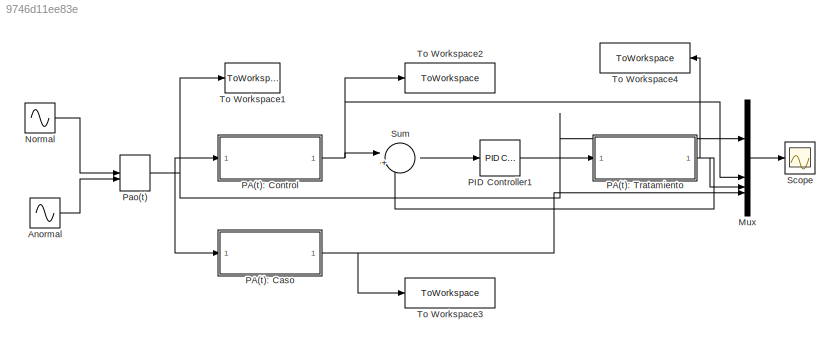
MODEL slx_9746d11ee83e
KIND model
CONFIG AbsTol = auto
CONFIG EnableMultiTasking = off
CONFIG FixedStep = auto
CONFIG MaxStep = 1e-3
CONFIG MinStep = auto
CONFIG RelTol = 1e-3
CONFIG SampleTimeConstraint = Unconstrained
CONFIG SolverName = ode15s
CONFIG StartTime = 0
CONFIG StopTime = 30
BLOCK [Sin] Anormal
  Amplitude = 1.5
  Frequency = pi/2
  SampleTime = 0
BLOCK [Mux] Mux
  DisplayOption = bar
BLOCK [Sin] Normal
  Amplitude = 2.5
  Frequency = pi
  SampleTime = 0
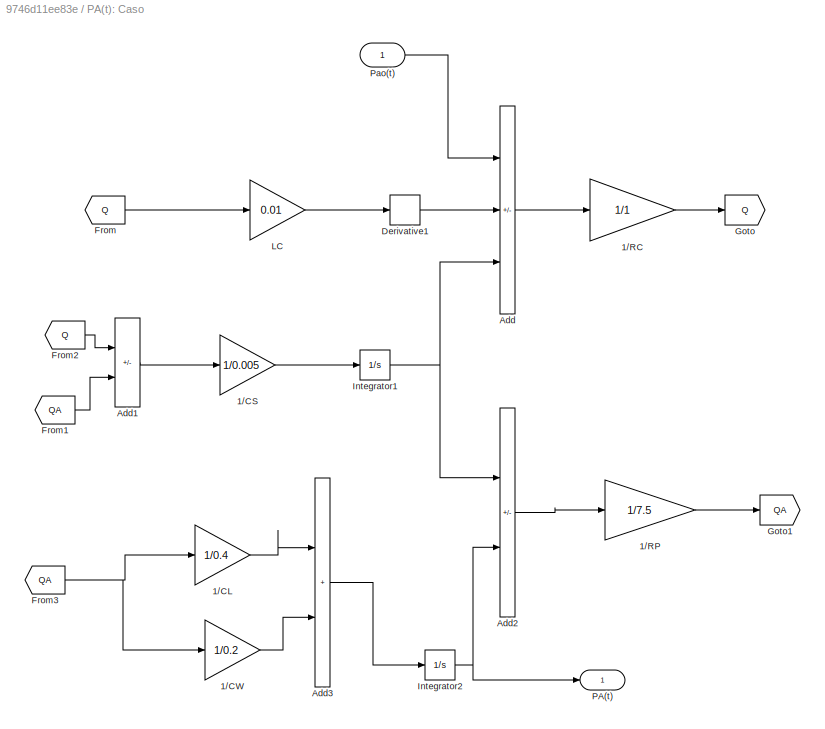
BLOCK [SubSystem] PA(t): Caso
BLOCK [Gain] PA(t): Caso/1//CL
  Gain = 1/0.4
BLOCK [Gain] PA(t): Caso/1//CS
  Gain = 1/0.005
BLOCK [Gain] PA(t): Caso/1//CW
  Gain = 1/0.2
BLOCK [Gain] PA(t): Caso/1//RC
  Gain = 1/1
BLOCK [Gain] PA(t): Caso/1//RP
  Gain = 1/7.5
BLOCK [Sum] PA(t): Caso/Add
  IconShape = rectangular
  Inputs = +--
BLOCK [Sum] PA(t): Caso/Add1
  IconShape = rectangular
  Inputs = +-
BLOCK [Sum] PA(t): Caso/Add2
  IconShape = rectangular
  Inputs = +-
BLOCK [Sum] PA(t): Caso/Add3
  IconShape = rectangular
BLOCK [Derivative] PA(t): Caso/Derivative1
BLOCK [From] PA(t): Caso/From
  GotoTag = Q
BLOCK [From] PA(t): Caso/From1
  GotoTag = QA
BLOCK [From] PA(t): Caso/From2
  GotoTag = Q
BLOCK [From] PA(t): Caso/From3
  GotoTag = QA
BLOCK [Goto] PA(t): Caso/Goto
  GotoTag = Q
BLOCK [Goto] PA(t): Caso/Goto1
  GotoTag = QA
BLOCK [Integrator] PA(t): Caso/Integrator1
BLOCK [Integrator] PA(t): Caso/Integrator2
BLOCK [Gain] PA(t): Caso/LC
  Gain = 0.01
BLOCK [Outport] PA(t): Caso/PA(t)
BLOCK [Inport] PA(t): Caso/Pao(t)
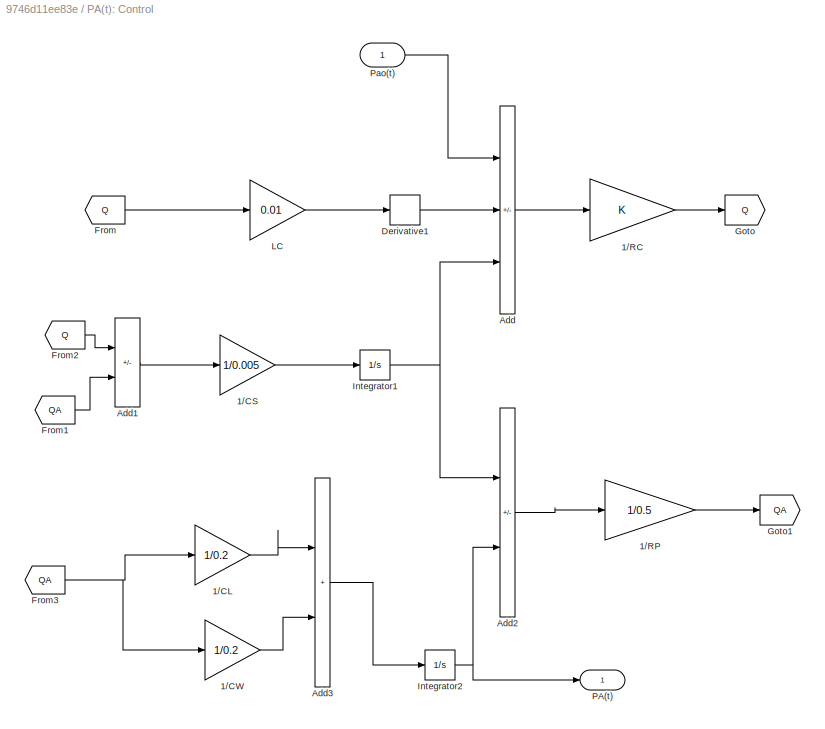
BLOCK [SubSystem] PA(t): Control
BLOCK [Gain] PA(t): Control/1//CL
  Gain = 1/0.2
BLOCK [Gain] PA(t): Control/1//CS
  Gain = 1/0.005
BLOCK [Gain] PA(t): Control/1//CW
  Gain = 1/0.2
BLOCK [Gain] PA(t): Control/1//RC
BLOCK [Gain] PA(t): Control/1//RP
  Gain = 1/0.5
BLOCK [Sum] PA(t): Control/Add
  IconShape = rectangular
  Inputs = +--
BLOCK [Sum] PA(t): Control/Add1
  IconShape = rectangular
  Inputs = +-
BLOCK [Sum] PA(t): Control/Add2
  IconShape = rectangular
  Inputs = +-
BLOCK [Sum] PA(t): Control/Add3
  IconShape = rectangular
BLOCK [Derivative] PA(t): Control/Derivative1
BLOCK [From] PA(t): Control/From
  GotoTag = Q
BLOCK [From] PA(t): Control/From1
  GotoTag = QA
BLOCK [From] PA(t): Control/From2
  GotoTag = Q
BLOCK [From] PA(t): Control/From3
  GotoTag = QA
BLOCK [Goto] PA(t): Control/Goto
  GotoTag = Q
BLOCK [Goto] PA(t): Control/Goto1
  GotoTag = QA
BLOCK [Integrator] PA(t): Control/Integrator1
BLOCK [Integrator] PA(t): Control/Integrator2
BLOCK [Gain] PA(t): Control/LC
  Gain = 0.01
BLOCK [Outport] PA(t): Control/PA(t)
BLOCK [Inport] PA(t): Control/Pao(t)
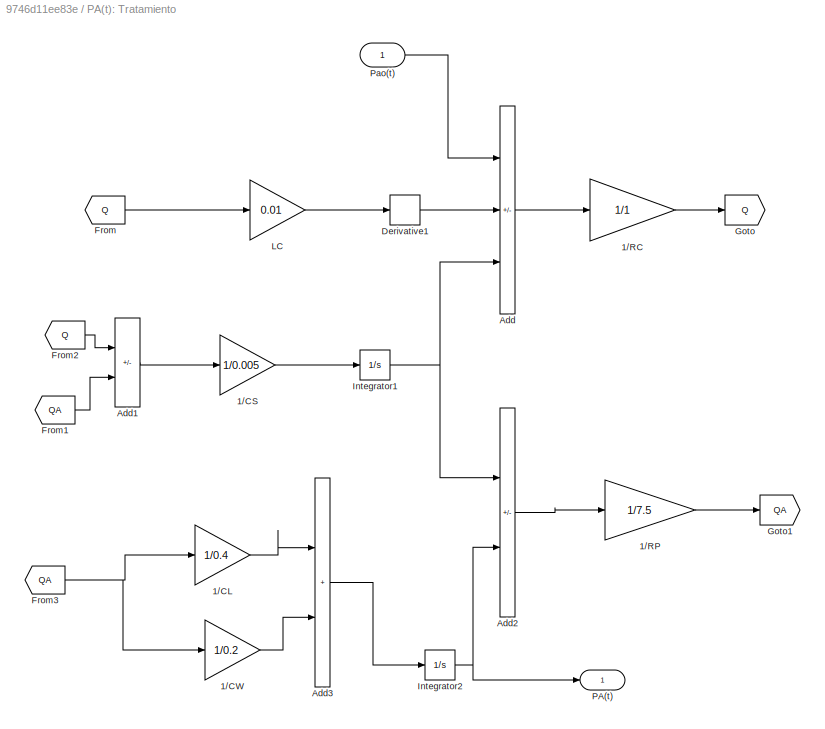
BLOCK [SubSystem] PA(t): Tratamiento
BLOCK [Gain] PA(t): Tratamiento/1//CL
  Gain = 1/0.4
BLOCK [Gain] PA(t): Tratamiento/1//CS
  Gain = 1/0.005
BLOCK [Gain] PA(t): Tratamiento/1//CW
  Gain = 1/0.2
BLOCK [Gain] PA(t): Tratamiento/1//RC
  Gain = 1/1
BLOCK [Gain] PA(t): Tratamiento/1//RP
  Gain = 1/7.5
BLOCK [Sum] PA(t): Tratamiento/Add
  IconShape = rectangular
  Inputs = +--
BLOCK [Sum] PA(t): Tratamiento/Add1
  IconShape = rectangular
  Inputs = +-
BLOCK [Sum] PA(t): Tratamiento/Add2
  IconShape = rectangular
  Inputs = +-
BLOCK [Sum] PA(t): Tratamiento/Add3
  IconShape = rectangular
BLOCK [Derivative] PA(t): Tratamiento/Derivative1
BLOCK [From] PA(t): Tratamiento/From
  GotoTag = Q
BLOCK [From] PA(t): Tratamiento/From1
  GotoTag = QA
BLOCK [From] PA(t): Tratamiento/From2
  GotoTag = Q
BLOCK [From] PA(t): Tratamiento/From3
  GotoTag = QA
BLOCK [Goto] PA(t): Tratamiento/Goto
  GotoTag = Q
BLOCK [Goto] PA(t): Tratamiento/Goto1
  GotoTag = QA
BLOCK [Integrator] PA(t): Tratamiento/Integrator1
BLOCK [Integrator] PA(t): Tratamiento/Integrator2
BLOCK [Gain] PA(t): Tratamiento/LC
  Gain = 0.01
BLOCK [Outport] PA(t): Tratamiento/PA(t)
BLOCK [Inport] PA(t): Tratamiento/Pao(t)
BLOCK [Reference] PID Controller1  REF=slpidlib/PID Controller
  LibrarySourceBlock = simulink/Continuous/PID Controller
  SourceBlock = slpidlib/PID Controller
  SourceType = PID 1dof
BLOCK [ManualSwitch] Pao(t)
  CurrentSetting = 0
BLOCK [Scope] Scope
  Floating = off
  NumInputPorts = 1
  ScopeSpecificationString = Simulink.scopes.TimeScopeBlockCfg('CurrentConfiguration', extmgr.ConfigurationSet(extmgr.Configuration('Core','General UI',true),extmgr.Configuration('Core','Source UI',true),extmgr.Configuration('Sources','WiredSimulink',true),extmgr.Configuration('Visuals','Time Domain',true,'PlotType','Line','SerializedDisplays',{struct('MinYLimReal','-1.875','MaxYLimReal','1.875','YLabelReal','','MinYLimMag','...<+1695ch>
BLOCK [Sum] Sum
  Inputs = |+-
BLOCK [ToWorkspace] To Workspace1
  FixptAsFi = on
  MaxDataPoints = inf
  SampleTime = -1
  VariableName = Pao
BLOCK [ToWorkspace] To Workspace2
  FixptAsFi = on
  MaxDataPoints = inf
  SampleTime = -1
  VariableName = PAx
BLOCK [ToWorkspace] To Workspace3
  FixptAsFi = on
  MaxDataPoints = inf
  SampleTime = -1
  VariableName = PAy
BLOCK [ToWorkspace] To Workspace4
  FixptAsFi = on
  MaxDataPoints = inf
  SampleTime = -1
  VariableName = PAz
LINE Anormal:1 -> Pao(t):2
LINE Mux:1 -> Scope:1
LINE Normal:1 -> Pao(t):1
LINE PA(t): Caso/1//CL:1 -> PA(t): Caso/Add3:1
LINE PA(t): Caso/1//CS:1 -> PA(t): Caso/Integrator1:1
LINE PA(t): Caso/1//CW:1 -> PA(t): Caso/Add3:2
LINE PA(t): Caso/1//RC:1 -> PA(t): Caso/Goto:1
LINE PA(t): Caso/1//RP:1 -> PA(t): Caso/Goto1:1
LINE PA(t): Caso/Add1:1 -> PA(t): Caso/1//CS:1
LINE PA(t): Caso/Add2:1 -> PA(t): Caso/1//RP:1
LINE PA(t): Caso/Add3:1 -> PA(t): Caso/Integrator2:1
LINE PA(t): Caso/Add:1 -> PA(t): Caso/1//RC:1
LINE PA(t): Caso/Derivative1:1 -> PA(t): Caso/Add:2
LINE PA(t): Caso/From1:1 -> PA(t): Caso/Add1:2
LINE PA(t): Caso/From2:1 -> PA(t): Caso/Add1:1
NET PA(t): Caso/From3:1 -> PA(t): Caso/1//CL:1, PA(t): Caso/1//CW:1
LINE PA(t): Caso/From:1 -> PA(t): Caso/LC:1
NET PA(t): Caso/Integrator1:1 -> PA(t): Caso/Add2:1, PA(t): Caso/Add:3
NET PA(t): Caso/Integrator2:1 -> PA(t): Caso/Add2:2, PA(t): Caso/PA(t):1
LINE PA(t): Caso/LC:1 -> PA(t): Caso/Derivative1:1
LINE PA(t): Caso/Pao(t):1 -> PA(t): Caso/Add:1
NET PA(t): Caso:1 -> Mux:4, To Workspace3:1
LINE PA(t): Control/1//CL:1 -> PA(t): Control/Add3:1
LINE PA(t): Control/1//CS:1 -> PA(t): Control/Integrator1:1
LINE PA(t): Control/1//CW:1 -> PA(t): Control/Add3:2
LINE PA(t): Control/1//RC:1 -> PA(t): Control/Goto:1
LINE PA(t): Control/1//RP:1 -> PA(t): Control/Goto1:1
LINE PA(t): Control/Add1:1 -> PA(t): Control/1//CS:1
LINE PA(t): Control/Add2:1 -> PA(t): Control/1//RP:1
LINE PA(t): Control/Add3:1 -> PA(t): Control/Integrator2:1
LINE PA(t): Control/Add:1 -> PA(t): Control/1//RC:1
LINE PA(t): Control/Derivative1:1 -> PA(t): Control/Add:2
LINE PA(t): Control/From1:1 -> PA(t): Control/Add1:2
LINE PA(t): Control/From2:1 -> PA(t): Control/Add1:1
NET PA(t): Control/From3:1 -> PA(t): Control/1//CL:1, PA(t): Control/1//CW:1
LINE PA(t): Control/From:1 -> PA(t): Control/LC:1
NET PA(t): Control/Integrator1:1 -> PA(t): Control/Add2:1, PA(t): Control/Add:3
NET PA(t): Control/Integrator2:1 -> PA(t): Control/Add2:2, PA(t): Control/PA(t):1
LINE PA(t): Control/LC:1 -> PA(t): Control/Derivative1:1
LINE PA(t): Control/Pao(t):1 -> PA(t): Control/Add:1
NET PA(t): Control:1 -> Mux:2, Sum:1, To Workspace2:1
LINE PA(t): Tratamiento/1//CL:1 -> PA(t): Tratamiento/Add3:1
LINE PA(t): Tratamiento/1//CS:1 -> PA(t): Tratamiento/Integrator1:1
LINE PA(t): Tratamiento/1//CW:1 -> PA(t): Tratamiento/Add3:2
LINE PA(t): Tratamiento/1//RC:1 -> PA(t): Tratamiento/Goto:1
LINE PA(t): Tratamiento/1//RP:1 -> PA(t): Tratamiento/Goto1:1
LINE PA(t): Tratamiento/Add1:1 -> PA(t): Tratamiento/1//CS:1
LINE PA(t): Tratamiento/Add2:1 -> PA(t): Tratamiento/1//RP:1
LINE PA(t): Tratamiento/Add3:1 -> PA(t): Tratamiento/Integrator2:1
LINE PA(t): Tratamiento/Add:1 -> PA(t): Tratamiento/1//RC:1
LINE PA(t): Tratamiento/Derivative1:1 -> PA(t): Tratamiento/Add:2
LINE PA(t): Tratamiento/From1:1 -> PA(t): Tratamiento/Add1:2
LINE PA(t): Tratamiento/From2:1 -> PA(t): Tratamiento/Add1:1
NET PA(t): Tratamiento/From3:1 -> PA(t): Tratamiento/1//CL:1, PA(t): Tratamiento/1//CW:1
LINE PA(t): Tratamiento/From:1 -> PA(t): Tratamiento/LC:1
NET PA(t): Tratamiento/Integrator1:1 -> PA(t): Tratamiento/Add2:1, PA(t): Tratamiento/Add:3
NET PA(t): Tratamiento/Integrator2:1 -> PA(t): Tratamiento/Add2:2, PA(t): Tratamiento/PA(t):1
LINE PA(t): Tratamiento/LC:1 -> PA(t): Tratamiento/Derivative1:1
LINE PA(t): Tratamiento/Pao(t):1 -> PA(t): Tratamiento/Add:1
NET PA(t): Tratamiento:1 -> Mux:3, Sum:2, To Workspace4:1
LINE PID Controller1:1 -> PA(t): Tratamiento:1
NET Pao(t):1 -> Mux:1, PA(t): Caso:1, PA(t): Control:1, To Workspace1:1
LINE Sum:1 -> PID Controller1:1
note: NET lines group one-source signal fan-out (src -> all destinations, sorted); 1:1 wires keep LINE
